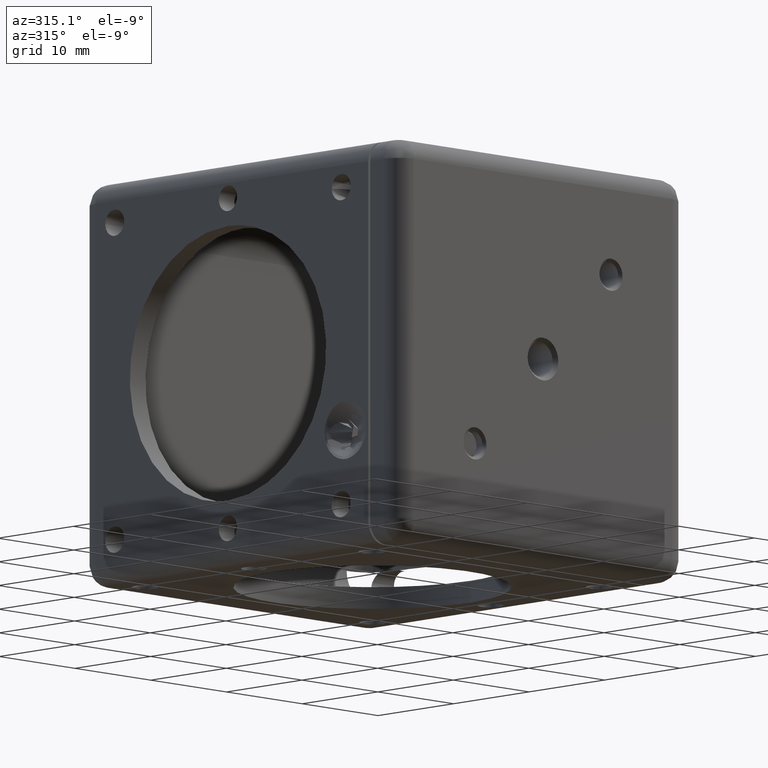
[diagram: clean part render]
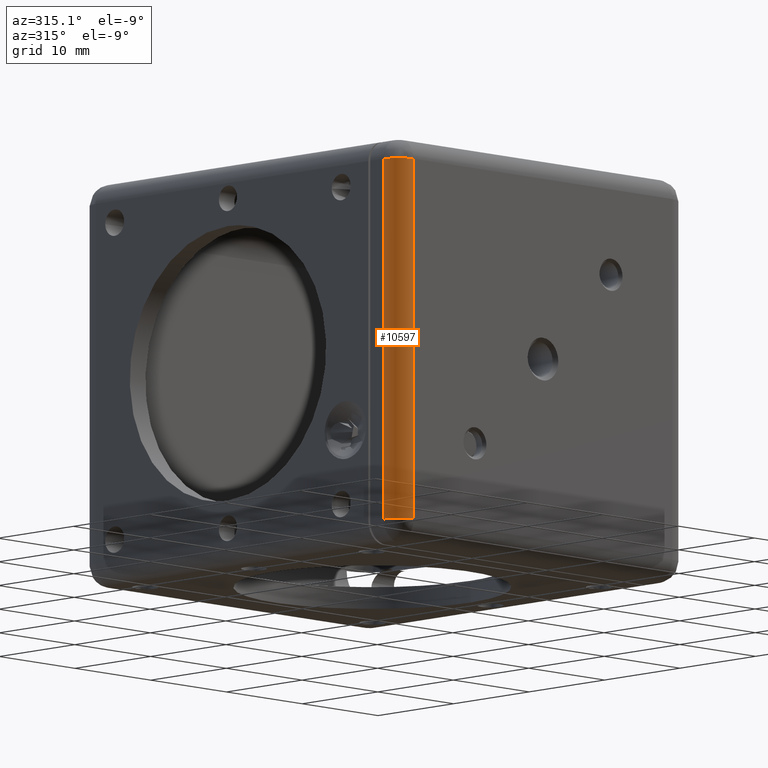
[diagram: same view with one face highlighted and labeled with its STEP entity id]
A machine part, auxiliary view. The second image highlights one B-rep face of the part: STEP entity #10597.
In plain terms, the highlighted face is a freeform B-spline surface patch.
Its self-contained STEP definition (entity closure, byte-faithful):
#43 = EDGE_CURVE ( 'NONE', #6835, #8608, #2864, .T. ) ;
#951 = FACE_OUTER_BOUND ( 'NONE', #10507, .T. ) ;
#1696 = CARTESIAN_POINT ( 'NONE',  ( -19.05000000000000071, 8.156113069147099176E-17, 17.05000000000000071 ) ) ;
#1783 = CARTESIAN_POINT ( 'NONE',  ( -18.22157287525380198, -2.000000000000000000, 17.04999999999999716 ) ) ;
#2141 = B_SPLINE_CURVE_WITH_KNOTS ( 'NONE', 1,
 ( #1696, #2916 ),
 .UNSPECIFIED., .F., .F.,
 ( 2, 2 ),
 ( 0.000000000000000000, 1.000000000000000000 ),
 .UNSPECIFIED. ) ;
#2176 = B_SPLINE_CURVE_WITH_KNOTS ( 'NONE', 1,
 ( #2802, #6688 ),
 .UNSPECIFIED., .F., .F.,
 ( 2, 2 ),
 ( 0.000000000000000000, 1.000000000000000000 ),
 .UNSPECIFIED. ) ;
#2722 = EDGE_CURVE ( 'NONE', #10039, #6835, #2176, .T. ) ;
#2745 = CARTESIAN_POINT ( 'NONE',  ( -19.04999999999999716, -1.171572875253809487, -17.04999999999999716 ) ) ;
#2802 = CARTESIAN_POINT ( 'NONE',  ( -17.05000000000000071, -2.000000000000000000, -17.05000000000000071 ) ) ;
#2864 =( BOUNDED_CURVE ( )  B_SPLINE_CURVE ( 3, ( #10512, #12346, #6359, #8350 ),
 .UNSPECIFIED., .F., .F. ) 
 B_SPLINE_CURVE_WITH_KNOTS ( ( 4, 4 ),
 ( 0.000000000000000000, 1.000000000000000000 ),
 .UNSPECIFIED. ) 
 CURVE ( )  GEOMETRIC_REPRESENTATION_ITEM ( )  RATIONAL_B_SPLINE_CURVE ( ( 1.000000000000000000, 0.8047378541243649375, 0.8047378541243649375, 1.000000000000000000 ) ) 
 REPRESENTATION_ITEM ( '' )  );
#2916 = CARTESIAN_POINT ( 'NONE',  ( -19.05000000000000071, 8.156113069147099176E-17, -17.05000000000000071 ) ) ;
#2920 = ORIENTED_EDGE ( 'NONE', *, *, #2722, .T. ) ;
#3004 = CARTESIAN_POINT ( 'NONE',  ( -19.05000000000000071, 2.449293598294710359E-16, 17.05000000000000071 ) ) ;
#3459 = CARTESIAN_POINT ( 'NONE',  ( -19.05000000000000071, 8.156113069147099176E-17, -17.05000000000000071 ) ) ;
#4387 = CARTESIAN_POINT ( 'NONE',  ( -19.05000000000000071, 8.156113069147099176E-17, 17.05000000000000071 ) ) ;
#4544 = CARTESIAN_POINT ( 'NONE',  ( -18.22157287525380198, -2.000000000000000000, -17.04999999999999716 ) ) ;
#4552 =( BOUNDED_SURFACE ( )  B_SPLINE_SURFACE ( 3, 1, ( 
 ( #4837, #3004 ),
 ( #2745, #6826 ),
 ( #6632, #1783 ),
 ( #7709, #5669 ) ),
 .UNSPECIFIED., .F., .F., .F. ) 
 B_SPLINE_SURFACE_WITH_KNOTS ( ( 4, 4 ),
 ( 2, 2 ),
 ( 0.000000000000000000, 1.000000000000000000 ),
 ( 0.000000000000000000, 1.000000000000000000 ),
 .UNSPECIFIED. ) 
 GEOMETRIC_REPRESENTATION_ITEM ( )  RATIONAL_B_SPLINE_SURFACE ( (
 ( 1.000000000000000000, 1.000000000000000000),
 ( 0.8047378541243649375, 0.8047378541243649375),
 ( 0.8047378541243649375, 0.8047378541243649375),
 ( 1.000000000000000000, 1.000000000000000000) ) ) 
 REPRESENTATION_ITEM ( '' )  SURFACE ( )  );
#4837 = CARTESIAN_POINT ( 'NONE',  ( -19.05000000000000071, 2.449293598294710359E-16, -17.05000000000000071 ) ) ;
#5495 = CARTESIAN_POINT ( 'NONE',  ( -17.05000000000000071, -2.000000000000000000, -17.05000000000000071 ) ) ;
#5669 = CARTESIAN_POINT ( 'NONE',  ( -17.05000000000000071, -2.000000000000000000, 17.05000000000000071 ) ) ;
#6359 = CARTESIAN_POINT ( 'NONE',  ( -19.04999999999999716, -1.171572875253809709, 17.04999999999999716 ) ) ;
#6632 = CARTESIAN_POINT ( 'NONE',  ( -18.22157287525380198, -2.000000000000000000, -17.04999999999999716 ) ) ;
#6688 = CARTESIAN_POINT ( 'NONE',  ( -17.05000000000000071, -2.000000000000000000, 17.05000000000000071 ) ) ;
#6750 = ORIENTED_EDGE ( 'NONE', *, *, #6980, .T. ) ;
#6826 = CARTESIAN_POINT ( 'NONE',  ( -19.04999999999999716, -1.171572875253809487, 17.04999999999999716 ) ) ;
#6835 = VERTEX_POINT ( 'NONE', #7170 ) ;
#6980 = EDGE_CURVE ( 'NONE', #11884, #10039, #7302, .T. ) ;
#7170 = CARTESIAN_POINT ( 'NONE',  ( -17.05000000000000071, -2.000000000000000000, 17.05000000000000071 ) ) ;
#7302 =( BOUNDED_CURVE ( )  B_SPLINE_CURVE ( 3, ( #3459, #7354, #4544, #5495 ),
 .UNSPECIFIED., .F., .T. ) 
 B_SPLINE_CURVE_WITH_KNOTS ( ( 4, 4 ),
 ( 0.000000000000000000, 1.000000000000000000 ),
 .UNSPECIFIED. ) 
 CURVE ( )  GEOMETRIC_REPRESENTATION_ITEM ( )  RATIONAL_B_SPLINE_CURVE ( ( 1.000000000000000000, 0.8047378541243649375, 0.8047378541243649375, 1.000000000000000000 ) ) 
 REPRESENTATION_ITEM ( '' )  );
#7354 = CARTESIAN_POINT ( 'NONE',  ( -19.04999999999999716, -1.171572875253809709, -17.04999999999999716 ) ) ;
#7709 = CARTESIAN_POINT ( 'NONE',  ( -17.05000000000000071, -2.000000000000000000, -17.05000000000000071 ) ) ;
#8350 = CARTESIAN_POINT ( 'NONE',  ( -19.05000000000000071, 8.156113069147099176E-17, 17.05000000000000071 ) ) ;
#8608 = VERTEX_POINT ( 'NONE', #4387 ) ;
#10039 = VERTEX_POINT ( 'NONE', #12574 ) ;
#10070 = ORIENTED_EDGE ( 'NONE', *, *, #12297, .T. ) ;
#10507 = EDGE_LOOP ( 'NONE', ( #6750, #2920, #12247, #10070 ) ) ;
#10512 = CARTESIAN_POINT ( 'NONE',  ( -17.05000000000000071, -2.000000000000000000, 17.05000000000000071 ) ) ;
#10541 = CARTESIAN_POINT ( 'NONE',  ( -19.05000000000000071, 8.156113069147099176E-17, -17.05000000000000071 ) ) ;
#10597 = ADVANCED_FACE ( 'NONE', ( #951 ), #4552, .T. ) ;
#11884 = VERTEX_POINT ( 'NONE', #10541 ) ;
#12247 = ORIENTED_EDGE ( 'NONE', *, *, #43, .T. ) ;
#12297 = EDGE_CURVE ( 'NONE', #8608, #11884, #2141, .T. ) ;
#12346 = CARTESIAN_POINT ( 'NONE',  ( -18.22157287525380198, -2.000000000000000000, 17.04999999999999716 ) ) ;
#12574 = CARTESIAN_POINT ( 'NONE',  ( -17.05000000000000071, -2.000000000000000000, -17.05000000000000071 ) ) ;